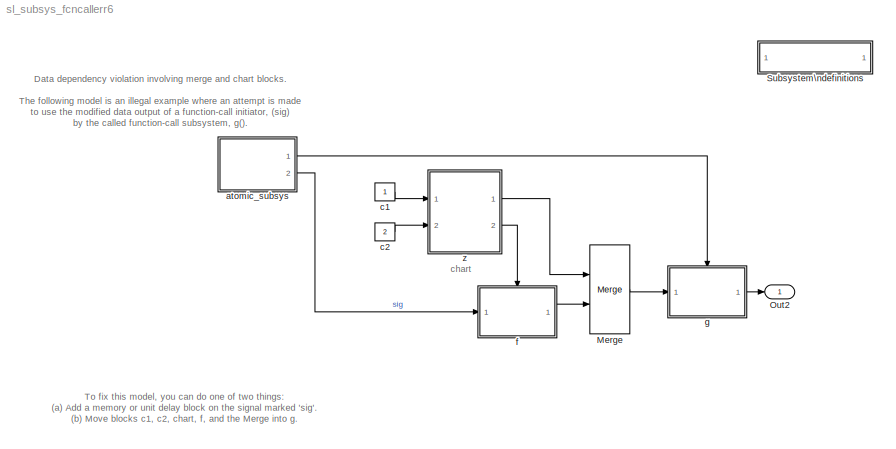
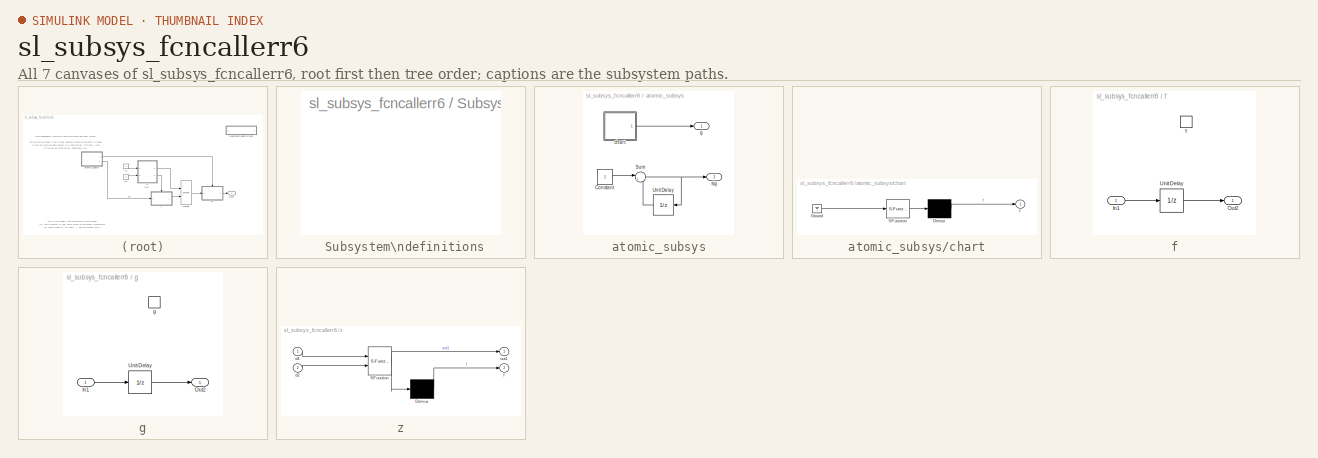
[diagram: thumbnail index - all 7 canvases of the model, root first then tree order]
MODEL sl_subsys_fcncallerr6
KIND model
BLOCK [SubSystem]  Subsystem\ndefinitions
  MaskDisplay = disp('Subsystem\\ndefinitions')\n\n
  MaskIconFrame = on
  MaskIconOpaque = on
  MaskIconRotate = none
  MaskIconUnits = autoscale
  MinAlgLoopOccurrences = off
  OpenFcn = helpview([matlabroot,'/toolbox/simulink/simdemos/sl_subsys_definitions.html']);
  Ports = []
  PropExecContextAcrossSSBoundary = on
  RTWSystemCode = Auto
  TreatAsAtomicUnit = off
BLOCK [Merge] Merge
  Ports = [2, 1]
BLOCK [Outport] Out2
  IconDisplay = Port number
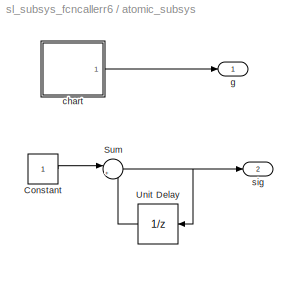
BLOCK [SubSystem] atomic_subsys
  MinAlgLoopOccurrences = off
  Ports = [0, 2]
  PropExecContextAcrossSSBoundary = on
  RTWSystemCode = Auto
  TreatAsAtomicUnit = on
BLOCK [Constant] atomic_subsys/Constant
BLOCK [Sum] atomic_subsys/Sum
  IconShape = round
  Inputs = |++
  Ports = [2, 1]
BLOCK [UnitDelay] atomic_subsys/Unit Delay
  SampleTime = -1
BLOCK [SubSystem] atomic_subsys/chart
  MaskDescription = Stateflow diagram
  MaskDisplay = plot(sf('Private','sfblk','xIcon'),sf('Private','sfblk','yIcon'));text(0.5,0,sf('Private', 'sfblk', 'tIcon'),'HorizontalAl','Center','VerticalAl','Bottom');
  MaskIconFrame = off
  MaskIconOpaque = off
  MaskIconRotate = none
  MaskIconUnits = autoscale
  MaskSelfModifiable = on
  MaskType = Stateflow
  MinAlgLoopOccurrences = off
  Ports = [0, 1]
  PropExecContextAcrossSSBoundary = on
  RTWSystemCode = Auto
  TreatAsAtomicUnit = off
BLOCK [Demux] atomic_subsys/chart/ Demux 
  Outputs = 1
  Ports = [1, 1]
BLOCK [Ground] atomic_subsys/chart/ Ground 
BLOCK [S-Function] atomic_subsys/chart/ SFunction 
  FunctionName = sf_sfun
  PortCounts = [1 1]
  Ports = [1, 1]
  Tag = Stateflow S-Function sl_subsys_fcncallerr6 4
BLOCK [Outport] atomic_subsys/chart/f
  IconDisplay = Port number
BLOCK [Outport] atomic_subsys/g
  IconDisplay = Port number
BLOCK [Outport] atomic_subsys/sig
  IconDisplay = Port number
  Port = 2
BLOCK [Constant] c1
BLOCK [Constant] c2
  Value = 2
BLOCK [SubSystem] f
  MinAlgLoopOccurrences = off
  Ports = [1, 1, 0, 1]
  PropExecContextAcrossSSBoundary = on
  RTWSystemCode = Auto
  TreatAsAtomicUnit = on
BLOCK [Inport] f/In1
  IconDisplay = Port number
  LatchInput = off
  Port = 1
BLOCK [Outport] f/Out2
  IconDisplay = Port number
BLOCK [UnitDelay] f/Unit Delay
  SampleTime = -1
BLOCK [TriggerPort] f/f
  Ports = []
  TriggerType = function-call
BLOCK [SubSystem] g
  MinAlgLoopOccurrences = off
  Ports = [1, 1, 0, 1]
  PropExecContextAcrossSSBoundary = on
  RTWSystemCode = Auto
  TreatAsAtomicUnit = on
BLOCK [Inport] g/In1
  IconDisplay = Port number
  LatchInput = off
  Port = 1
BLOCK [Outport] g/Out2
  IconDisplay = Port number
BLOCK [UnitDelay] g/Unit Delay
  SampleTime = -1
BLOCK [TriggerPort] g/g
  Ports = []
  TriggerType = function-call
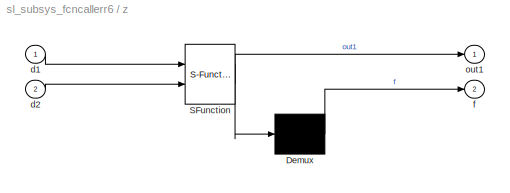
BLOCK [SubSystem] z
  MaskDescription = Stateflow diagram
  MaskDisplay = plot(sf('Private','sfblk','xIcon'),sf('Private','sfblk','yIcon'));text(0.5,0,sf('Private', 'sfblk', 'tIcon'),'HorizontalAl','Center','VerticalAl','Bottom');
  MaskIconFrame = off
  MaskIconOpaque = off
  MaskIconRotate = none
  MaskIconUnits = autoscale
  MaskSelfModifiable = on
  MaskType = Stateflow
  MinAlgLoopOccurrences = off
  Ports = [2, 2]
  PropExecContextAcrossSSBoundary = on
  RTWSystemCode = Auto
  TreatAsAtomicUnit = off
BLOCK [Demux] z/ Demux 
  Outputs = 1
  Ports = [1, 1]
BLOCK [S-Function] z/ SFunction 
  FunctionName = sf_sfun
  PortCounts = [2 2]
  Ports = [2, 2]
  Tag = Stateflow S-Function sl_subsys_fcncallerr6 2
BLOCK [Inport] z/d1
  IconDisplay = Port number
  LatchInput = off
  Port = 1
BLOCK [Inport] z/d2
  IconDisplay = Port number
  LatchInput = off
  Port = 2
BLOCK [Outport] z/f
  IconDisplay = Port number
  Port = 2
BLOCK [Outport] z/out1
  IconDisplay = Port number
ANNOTATION (root): Data dependency violation involving merge and chart blocks.\n\nThe following model is an illegal example where an attempt is made\nto use the modified data output of a function-call initiator, (sig)\nby the called function-call subsystem, g().
ANNOTATION (root): To fix this model, you can do one of two things:\n(a) Add a memory or unit delay block on the signal marked 'sig'.\n(b) Move blocks c1, c2, chart, f, and the Merge into g.
ANNOTATION (root): chart
LINE Merge:1 -> g:1
LINE atomic_subsys/Constant:1 -> atomic_subsys/Sum:1
NET atomic_subsys/Sum:1 -> atomic_subsys/Unit Delay:1, atomic_subsys/sig:1
LINE atomic_subsys/Unit Delay:1 -> atomic_subsys/Sum:2
LINE atomic_subsys/chart/ Demux :1 -> atomic_subsys/chart/f:1
LINE atomic_subsys/chart/ Ground :1 -> atomic_subsys/chart/ SFunction :1
LINE atomic_subsys/chart/ SFunction :1 -> atomic_subsys/chart/ Demux :1
LINE atomic_subsys/chart:1 -> atomic_subsys/g:1
LINE atomic_subsys:1 -> g:trigger
LINE atomic_subsys:2 -> f:1
LINE c1:1 -> z:1
LINE c2:1 -> z:2
LINE f/In1:1 -> f/Unit Delay:1
LINE f/Unit Delay:1 -> f/Out2:1
LINE f:1 -> Merge:2
LINE g/In1:1 -> g/Unit Delay:1
LINE g/Unit Delay:1 -> g/Out2:1
LINE g:1 -> Out2:1
LINE z/ Demux :1 -> z/f:1
LINE z/ SFunction :1 -> z/ Demux :1
LINE z/ SFunction :2 -> z/out1:1
LINE z/d1:1 -> z/ SFunction :1
LINE z/d2:1 -> z/ SFunction :2
LINE z:1 -> Merge:1
LINE z:2 -> f:trigger
note: NET lines group one-source signal fan-out (src -> all destinations, sorted); 1:1 wires keep LINE
CHART z states=2 transitions=3
  STATE_LABEL 'one/\\nentry:f;out1=d1+d2;'
  STATE_LABEL 'two/\\nentry: f;out1=d1-d2;'
CHART atomic_subsys/chart states=2 transitions=3
  STATE_LABEL 'one/\\nentry: f;'
  STATE_LABEL 'two/\\nentry: f;'
